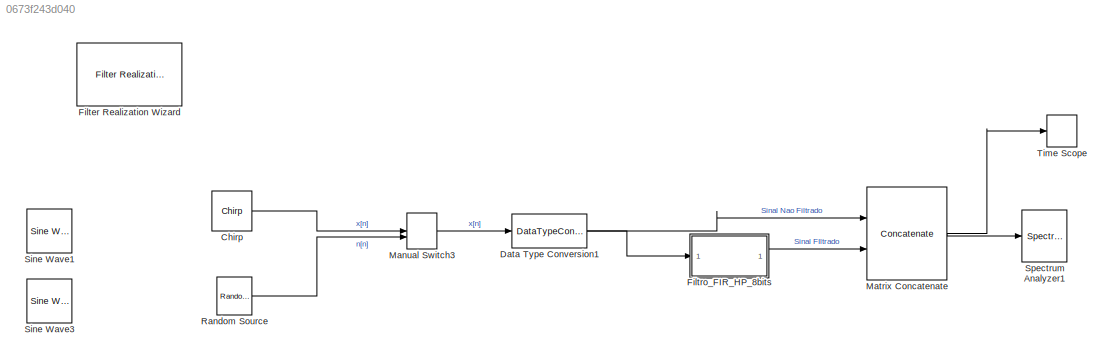
MODEL slx_0673f243d040
KIND model
CONFIG AbsTol = auto
CONFIG FixedStep = auto
CONFIG MaxStep = auto
CONFIG MinStep = auto
CONFIG RelTol = 1e-3
CONFIG SampleTimeConstraint = Unconstrained
CONFIG Solver = ode45
CONFIG SolverMode = Auto
CONFIG SolverName = ode45
CONFIG StartTime = 0.0
CONFIG StopTime = 10.0
BLOCK [Reference] Chirp  REF=dspsrcs4/Chirp
  Ports = [0, 1]
  SourceBlock = dspsrcs4/Chirp
  SourceType = Chirp
  Ts = Ta
  Tsweep = 1
  datatype = Double
  f0 = 0
  f1 = fa/2
  mode = Unidirectional
  phase = 0
  spf = spf
  sweep = Linear
  t1 = 1
BLOCK [DataTypeConversion] Data Type Conversion1
  RndMeth = Floor
  SaturateOnIntegerOverflow = off
BLOCK [Reference] Filter Realization Wizard  REF=dsparch4/Filter
Realization
Wizard
  Commented = on
  Ports = []
  SourceBlock = dsparch4/Filter\nRealization\nWizard
  SourceType = Filter Realization Wizard
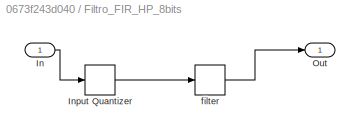
BLOCK [SubSystem] Filtro_FIR_HP_8bits
  Ports = [1, 1]
  RequestExecContextInheritance = off
BLOCK [Inport] Filtro_FIR_HP_8bits/In
  IconDisplay = Port number
  SampleTime = 0.0001
BLOCK [DataTypeConversion] Filtro_FIR_HP_8bits/Input Quantizer
  OutDataTypeStr = fixdt(1, 16, 15)
  RndMeth = Round
  SampleTime = 0.0001
BLOCK [Outport] Filtro_FIR_HP_8bits/Out
  IconDisplay = Port number
BLOCK [DiscreteFir] Filtro_FIR_HP_8bits/filter
  AccumDataTypeStr = fixdt(true,25,23)
  CoefDataTypeStr = fixdt(true,8,8)
  Coefficients = [-0.00532709506172761044 0.00150016559407488014 0.00628495279823278012 -0.00636828988327803585 -0.00403452349221034706 0.0111906482400220622 -0.00231967061384724497 -0.0130613282623932899 0.01189990154197915 0.00894421000991611065 -0.0216421575545340458 0.0030362156599829525 0.0265962407774834042 -0.0224925554974460436 -0.0206671663559229203 0.0463858207415749138 -0.00352514866909382297 -0.0696283...<+578ch>
  FilterStructure = Direct form symmetric
  OutDataTypeStr = fixdt(true,25,23)
  Ports = [1, 1]
  ProductDataTypeStr = fixdt(true,24,23)
  RndMeth = Convergent
  TapSumDataTypeStr = fixdt(true,17,15)
BLOCK [ManualSwitch] Manual Switch3
BLOCK [Concatenate] Matrix Concatenate
  ConcatenateDimension = 2
  Mode = Multidimensional array
  Ports = [2, 1]
BLOCK [Reference] Random Source  REF=dspsrcs4/Random
Source
  CltLength = 12
  DataType = Single
  IsInherit = off
  MaxVal = 1
  MeanVal = 0
  MinVal = -1
  NormMethod = Ziggurat
  OutComplex = Real
  Ports = [0, 1]
  RepMode = Not repeatable
  SampFrame = spf
  SampMode = Discrete
  SampTime = Ta
  SourceBlock = dspsrcs4/Random\nSource
  SourceType = Random Source
  SrcType = Uniform
  UserDataPersistent = on
  VarVal = 1
  rawSeed = 1
BLOCK [Reference] Sine Wave1  REF=dspsrcs4/Sine Wave
  Amplitude = 1
  Commented = on
  CompMethod = Trigonometric fcn
  Frequency = 100
  LastOutDataTypeStr = double
  OutComplex = Real
  OutDataTypeStr = double
  Phase = 0
  Ports = [0, 1]
  ResetState = Restart at time zero
  SampleMode = Discrete
  SampleTime = 1/8000
  SamplesPerFrame = 1
  SourceBlock = dspsrcs4/Sine Wave
  SourceType = Sine Wave
  TableSize = Speed
  additionalParams = off
  allowOverrides = on
  dataType = double
  fracBitsMode = Best precision
  numFracBits = 15
  udDataType = sfix(16)
  wordLen = 16
BLOCK [Reference] Sine Wave3  REF=dspsrcs4/Sine Wave
  Amplitude = 1
  Commented = on
  CompMethod = Trigonometric fcn
  Frequency = 100
  LastOutDataTypeStr = double
  OutComplex = Real
  OutDataTypeStr = double
  Phase = 0
  Ports = [0, 1]
  ResetState = Restart at time zero
  SampleMode = Discrete
  SampleTime = 1/8000
  SamplesPerFrame = 1
  SourceBlock = dspsrcs4/Sine Wave
  SourceType = Sine Wave
  TableSize = Speed
  additionalParams = off
  allowOverrides = on
  dataType = double
  fracBitsMode = Best precision
  numFracBits = 15
  udDataType = sfix(16)
  wordLen = 16
BLOCK [SpectrumAnalyzer] Spectrum Analyzer1
  Ports = [1]
  ScopeSpecificationString = spbscopes.SpectrumAnalyzerBlockCfg('CurrentConfiguration', extmgr.ConfigurationSet(extmgr.Configuration('Core','General UI',true,'FigureColor',[1 1 1]),extmgr.Configuration('Core','Source UI',true),extmgr.Configuration('Sources','Workspace',false),extmgr.Configuration('Sources','File',false),extmgr.Configuration('Sources','Simulink',false),extmgr.Configuration('Sources','SPTool',false),extmgr.Conf...<+3241ch>
BLOCK [TimeScope] Time Scope
  DefaultConfigurationName = spbscopes.TimeScopeBlockCfg
  NumInputPorts = 1
  Ports = [1]
  ScopeSpecificationString = spbscopes.TimeScopeBlockCfg('CurrentConfiguration', extmgr.ConfigurationSet(extmgr.Configuration('Core','General UI',true,'FigureColor',[1 1 1]),extmgr.Configuration('Core','Source UI',true),extmgr.Configuration('Sources','WiredSimulink',true),extmgr.Configuration('Visuals','Time Domain',true,'DisplayPropertyDefaults',struct('MinYLimReal','-1.25','MaxYLimReal','1.25','YLabelReal','Amplitude','MinY...<+1690ch>
  UserDataPersistent = on
LINE Chirp:1 -> Manual Switch3:1
NET Data Type Conversion1:1 -> Filtro_FIR_HP_8bits:1, Matrix Concatenate:1
LINE Filtro_FIR_HP_8bits/In:1 -> Filtro_FIR_HP_8bits/Input Quantizer:1
LINE Filtro_FIR_HP_8bits/Input Quantizer:1 -> Filtro_FIR_HP_8bits/filter:1
LINE Filtro_FIR_HP_8bits/filter:1 -> Filtro_FIR_HP_8bits/Out:1
LINE Filtro_FIR_HP_8bits:1 -> Matrix Concatenate:2
LINE Manual Switch3:1 -> Data Type Conversion1:1
NET Matrix Concatenate:1 -> Spectrum Analyzer1:1, Time Scope:1
LINE Random Source:1 -> Manual Switch3:2
note: NET lines group one-source signal fan-out (src -> all destinations, sorted); 1:1 wires keep LINE
